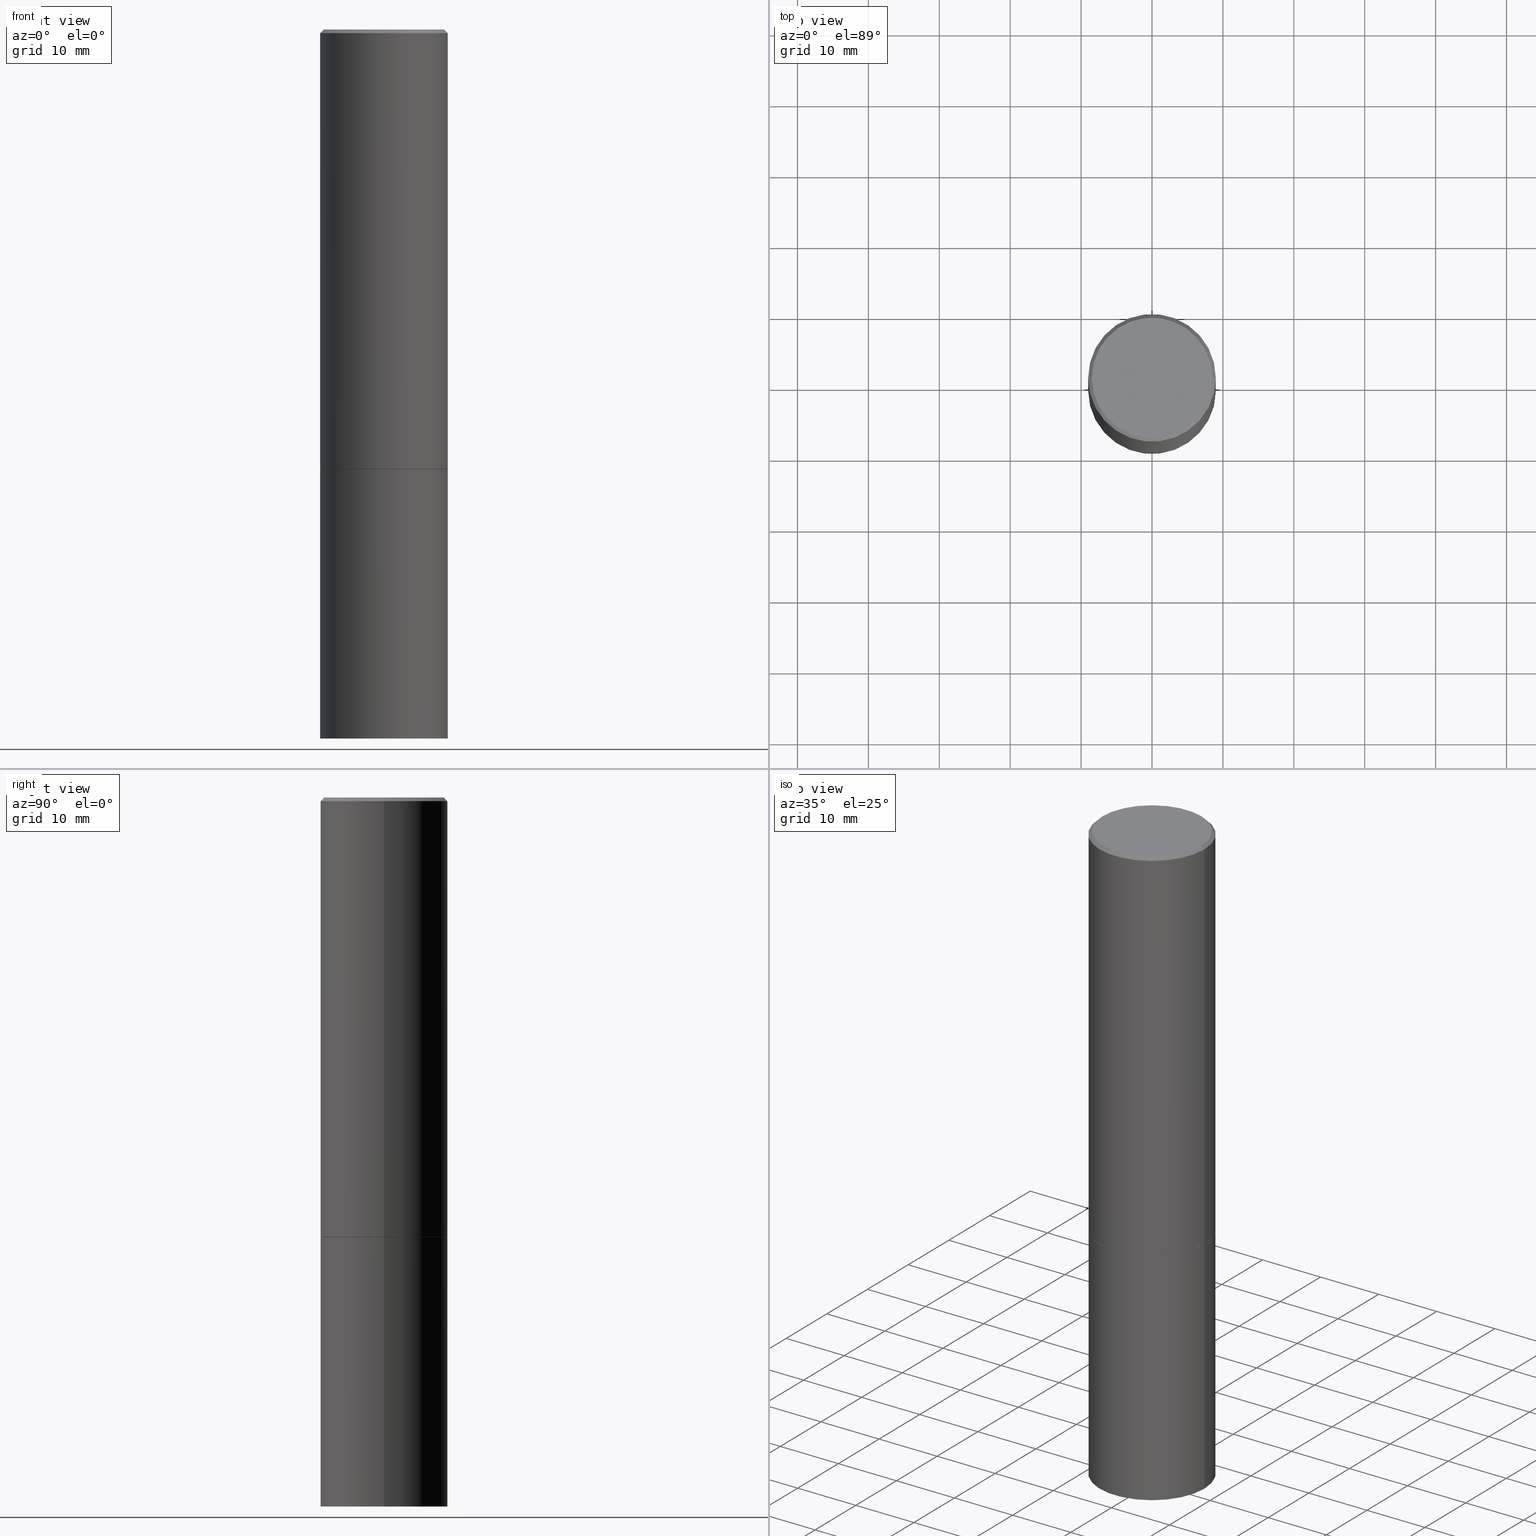
[diagram: canonical four-view strip — front | top / right | iso, engineering-drawing reading convention]
A machine part, canonical four-view strip (front | top / right | iso — engineering-drawing reading convention). The complete STEP part file that produces these views, byte-faithful:
ISO-10303-21;
HEADER;
FILE_DESCRIPTION (( 'STEP AP203' ),
    '1' );
FILE_NAME ('40577.STEP',
    '2024-02-28T02:25:38',
    ( '' ),
    ( '' ),
    'SwSTEP 2.0',
    'SolidWorks 2023',
    '' );
FILE_SCHEMA (( 'CONFIG_CONTROL_DESIGN' ));
ENDSEC;

DATA;
#1 = ORIENTED_EDGE ( 'NONE', *, *, #295, .F. ) ;
#2 = FACE_OUTER_BOUND ( 'NONE', #222, .T. ) ;
#3 = CYLINDRICAL_SURFACE ( 'NONE', #102, 0.3543499999999999983 ) ;
#4 = CARTESIAN_POINT ( 'NONE',  ( 0.3543499999999999983, -2.474412824838128694E-15, 1.727873240503289749E-29 ) ) ;
#5 = EDGE_CURVE ( 'NONE', #325, #200, #67, .T. ) ;
#6 = DIRECTION ( 'NONE',  ( -2.445468806185136597E-29, 3.491481338843145583E-15, 1.000000000000000000 ) ) ;
#7 = CARTESIAN_POINT ( 'NONE',  ( 5.966699340211115678E-29, -8.518865318643391536E-15, -2.439900000000000180 ) ) ;
#8 = CARTESIAN_POINT ( 'NONE',  ( 4.890937612370294178E-31, -6.982962677686321191E-17, -0.02000000000000008715 ) ) ;
#9 = COORDINATED_UNIVERSAL_TIME_OFFSET ( 5, 0, .BEHIND. ) ;
#10 =( NAMED_UNIT ( * ) SI_UNIT ( $, .STERADIAN. ) SOLID_ANGLE_UNIT ( ) );
#11 = VECTOR ( 'NONE', #254, 39.37007874015748143 ) ;
#12 = PRODUCT_DEFINITION ( 'UNKNOWN', '', #301, #125 ) ;
#13 = AXIS2_PLACEMENT_3D ( 'NONE', #138, #135, #229 ) ;
#14 = ADVANCED_FACE ( 'NONE', ( #144 ), #237, .F. ) ;
#15 = EDGE_LOOP ( 'NONE', ( #302, #251, #103, #76 ) ) ;
#16 = ADVANCED_BREP_SHAPE_REPRESENTATION ( '40577', ( #23, #150, #224 ), #281 ) ;
#17 = DIRECTION ( 'NONE',  ( -0.7071067811865469066, 2.468850131082251144E-15, -0.7071067811865479058 ) ) ;
#18 = ORIENTED_EDGE ( 'NONE', *, *, #352, .T. ) ;
#19 = PERSON_AND_ORGANIZATION ( #274, #270 ) ;
#20 = EDGE_CURVE ( 'NONE', #24, #261, #68, .T. ) ;
#21 = CARTESIAN_POINT ( 'NONE',  ( 4.890937612370294178E-31, -6.982962677686321191E-17, -0.02000000000000008715 ) ) ;
#22 = SECURITY_CLASSIFICATION ( '', '', #298 ) ;
#23 = MANIFOLD_SOLID_BREP ( 'Body-Move/Copy2[1]', #84 ) ;
#24 = VERTEX_POINT ( 'NONE', #142 ) ;
#25 = DIRECTION ( 'NONE',  ( -2.445468806185136597E-29, 3.491481338843145583E-15, 1.000000000000000000 ) ) ;
#26 = DIRECTION ( 'NONE',  ( 1.000000000000000000, -6.982962677686266711E-15, 4.876061227832602160E-29 ) ) ;
#27 = DIRECTION ( 'NONE',  ( 1.000000000000000000, -6.982962677686266711E-15, 4.876176775795935793E-29 ) ) ;
#28 = CARTESIAN_POINT ( 'NONE',  ( 0.3543499999999997208, -2.500847092287203718E-15, -0.02000000000000008715 ) ) ;
#29 = VECTOR ( 'NONE', #88, 39.37007874015748143 ) ;
#30 = CONICAL_SURFACE ( 'NONE', #287, 0.3533499999999999974, 0.7853981633975507526 ) ;
#31 = ORIENTED_EDGE ( 'NONE', *, *, #86, .F. ) ;
#32 = CYLINDRICAL_SURFACE ( 'NONE', #13, 0.3543499999999998873 ) ;
#33 = DIRECTION ( 'NONE',  ( -2.445468806185136597E-29, 3.491481338843145583E-15, 1.000000000000000000 ) ) ;
#34 = EDGE_CURVE ( 'NONE', #186, #285, #257, .T. ) ;
#35 = AXIS2_PLACEMENT_3D ( 'NONE', #94, #73, #153 ) ;
#36 = APPLICATION_PROTOCOL_DEFINITION ( 'international standard', 'config_control_design', 1994, #307 ) ;
#37 = CARTESIAN_POINT ( 'NONE',  ( 5.969144809017300159E-29, -8.522356799982234543E-15, -2.440900000000000070 ) ) ;
#38 = DATE_TIME_ROLE ( 'creation_date' ) ;
#39 = PRODUCT_DEFINITION_SHAPE ( 'NONE', 'NONE',  #12 ) ;
#40 = VECTOR ( 'NONE', #118, 39.37007874015748854 ) ;
#41 = LOCAL_TIME ( 21, 25, 38.00000000000000000, #324 ) ;
#42 = CALENDAR_DATE ( 2024, 27, 2 ) ;
#43 = LENGTH_MEASURE_WITH_UNIT ( LENGTH_MEASURE( 0.02539999999999999897 ), #312 );
#44 = EDGE_CURVE ( 'NONE', #299, #261, #253, .T. ) ;
#45 = ORIENTED_EDGE ( 'NONE', *, *, #44, .F. ) ;
#46 = CC_DESIGN_PERSON_AND_ORGANIZATION_ASSIGNMENT ( #209, #213, ( #98 ) ) ;
#47 = SHAPE_DEFINITION_REPRESENTATION ( #39, #16 ) ;
#48 = EDGE_LOOP ( 'NONE', ( #151, #57 ) ) ;
#49 = AXIS2_PLACEMENT_3D ( 'NONE', #92, #112, #196 ) ;
#50 = CARTESIAN_POINT ( 'NONE',  ( 4.890937612370294178E-31, -6.982962677686321191E-17, -0.02000000000000008715 ) ) ;
#51 = ADVANCED_FACE ( 'NONE', ( #314 ), #335, .F. ) ;
#52 = CARTESIAN_POINT ( 'NONE',  ( -0.3533499999999999974, -6.011654043173919372E-15, -2.440900000000000070 ) ) ;
#53 = ORIENTED_EDGE ( 'NONE', *, *, #86, .T. ) ;
#54 = CALENDAR_DATE ( 2024, 27, 2 ) ;
#55 = DIRECTION ( 'NONE',  ( 0.7071067811866199593, -2.468850131083015945E-15, 0.7071067811864750752 ) ) ;
#56 = DIRECTION ( 'NONE',  ( -2.445468806185136597E-29, 3.491481338843145583E-15, 1.000000000000000000 ) ) ;
#57 = ORIENTED_EDGE ( 'NONE', *, *, #333, .T. ) ;
#58 = CARTESIAN_POINT ( 'NONE',  ( -0.3543499999999999983, -8.616351231337934377E-15, -2.440900000000000070 ) ) ;
#59 = LOCAL_TIME ( 21, 25, 38.00000000000000000, #245 ) ;
#60 = ORIENTED_EDGE ( 'NONE', *, *, #202, .F. ) ;
#61 = DIRECTION ( 'NONE',  ( -2.445468806185136597E-29, 3.491481338843145583E-15, 1.000000000000000000 ) ) ;
#62 = ORIENTED_EDGE ( 'NONE', *, *, #293, .F. ) ;
#63 = CARTESIAN_POINT ( 'NONE',  ( -0.3543499999999999983, -1.776539288544209660E-15, -2.439900000000000180 ) ) ;
#64 = AXIS2_PLACEMENT_3D ( 'NONE', #7, #289, #234 ) ;
#65 = ORIENTED_EDGE ( 'NONE', *, *, #161, .T. ) ;
#66 = ADVANCED_FACE ( 'NONE', ( #173 ), #91, .T. ) ;
#67 = LINE ( 'NONE', #230, #292 ) ;
#68 = CIRCLE ( 'NONE', #273, 0.3543499999999999983 ) ;
#69 = FACE_OUTER_BOUND ( 'NONE', #189, .T. ) ;
#70 = CONICAL_SURFACE ( 'NONE', #204, 0.3543499999999997208, 0.7853981633974476129 ) ;
#71 = DATE_AND_TIME ( #211, #59 ) ;
#72 = APPROVAL ( #126, 'UNSPECIFIED' ) ;
#73 = DIRECTION ( 'NONE',  ( -2.438088387897960049E-29, 3.491481338843145188E-15, 1.000000000000000000 ) ) ;
#74 = VECTOR ( 'NONE', #123, 39.37007874015748143 ) ;
#75 = CC_DESIGN_APPROVAL ( #72, ( #301 ) ) ;
#76 = ORIENTED_EDGE ( 'NONE', *, *, #5, .F. ) ;
#77 = CARTESIAN_POINT ( 'NONE',  ( -0.3543499999999999983, -8.616351231337934377E-15, -3.937000000000000277 ) ) ;
#78 = ORIENTED_EDGE ( 'NONE', *, *, #333, .F. ) ;
#79 = DIRECTION ( 'NONE',  ( 1.000000000000000000, -6.982962677686265133E-15, 0.000000000000000000 ) ) ;
#80 = EDGE_LOOP ( 'NONE', ( #297, #119, #360, #83 ) ) ;
#81 = APPROVAL_STATUS ( 'not_yet_approved' ) ;
#82 = CARTESIAN_POINT ( 'NONE',  ( 0.000000000000000000, 0.000000000000000000, 0.000000000000000000 ) ) ;
#83 = ORIENTED_EDGE ( 'NONE', *, *, #352, .F. ) ;
#84 = CLOSED_SHELL ( 'NONE', ( #348, #346, #51, #268 ) ) ;
#85 = CIRCLE ( 'NONE', #182, 0.3543499999999999983 ) ;
#86 = EDGE_CURVE ( 'NONE', #331, #258, #336, .T. ) ;
#87 = DIRECTION ( 'NONE',  ( -2.445468806185136877E-29, 3.491481338843145188E-15, 1.000000000000000000 ) ) ;
#88 = DIRECTION ( 'NONE',  ( -2.445468806185136877E-29, 3.491481338843145188E-15, 1.000000000000000000 ) ) ;
#89 = DIRECTION ( 'NONE',  ( 1.000000000000000000, -6.982962677686265133E-15, 0.000000000000000000 ) ) ;
#90 = EDGE_CURVE ( 'NONE', #331, #200, #232, .T. ) ;
#91 = CONICAL_SURFACE ( 'NONE', #350, 0.3543499999999997208, 0.7853981633974476129 ) ;
#92 = CARTESIAN_POINT ( 'NONE',  ( 2.334753571284400520E-15, 0.3343499999999996475, -1.165242529397154385E-15 ) ) ;
#93 = CARTESIAN_POINT ( 'NONE',  ( -0.3543499999999997208, 2.404583198061263424E-15, -0.02000000000000008715 ) ) ;
#94 = CARTESIAN_POINT ( 'NONE',  ( 5.969144809017300159E-29, -8.522356799982234543E-15, -2.440900000000000070 ) ) ;
#95 = CIRCLE ( 'NONE', #317, 0.3343499999999996475 ) ;
#96 = EDGE_CURVE ( 'NONE', #111, #146, #236, .T. ) ;
#97 = CC_DESIGN_APPROVAL ( #256, ( #12 ) ) ;
#98 = PRODUCT ( '40577', '40577', '', ( #159 ) ) ;
#99 = DIRECTION ( 'NONE',  ( -2.445468806185136597E-29, 3.491481338843145583E-15, 1.000000000000000000 ) ) ;
#100 = APPROVAL_ROLE ( '' ) ;
#101 = ORIENTED_EDGE ( 'NONE', *, *, #288, .T. ) ;
#102 = AXIS2_PLACEMENT_3D ( 'NONE', #122, #291, #154 ) ;
#103 = ORIENTED_EDGE ( 'NONE', *, *, #288, .F. ) ;
#104 = APPROVAL_ROLE ( '' ) ;
#105 = CARTESIAN_POINT ( 'NONE',  ( 0.3533499999999999974, -1.098978666214267525E-14, -2.440900000000000070 ) ) ;
#106 = EDGE_LOOP ( 'NONE', ( #227, #305, #358, #60 ) ) ;
#107 = DIRECTION ( 'NONE',  ( -2.445468806185136597E-29, 3.491481338843145583E-15, 1.000000000000000000 ) ) ;
#108 = VECTOR ( 'NONE', #361, 39.37007874015748143 ) ;
#109 = APPROVAL ( #81, 'UNSPECIFIED' ) ;
#110 = LINE ( 'NONE', #193, #241 ) ;
#111 = VERTEX_POINT ( 'NONE', #63 ) ;
#112 = DIRECTION ( 'NONE',  ( 2.438088387897960049E-29, -3.491481338843145188E-15, -1.000000000000000000 ) ) ;
#113 = CARTESIAN_POINT ( 'NONE',  ( 0.000000000000000000, 0.000000000000000000, 0.000000000000000000 ) ) ;
#114 = CC_DESIGN_PERSON_AND_ORGANIZATION_ASSIGNMENT ( #192, #303, ( #22 ) ) ;
#115 = DIRECTION ( 'NONE',  ( 2.445468806185136597E-29, -3.491481338843145583E-15, -1.000000000000000000 ) ) ;
#116 = AXIS2_PLACEMENT_3D ( 'NONE', #313, #283, #26 ) ;
#117 = CIRCLE ( 'NONE', #128, 0.3533499999999999974 ) ;
#118 = DIRECTION ( 'NONE',  ( 0.7071067811865469066, -7.319954787623252890E-15, -0.7071067811865479058 ) ) ;
#119 = ORIENTED_EDGE ( 'NONE', *, *, #34, .T. ) ;
#120 = ORIENTED_EDGE ( 'NONE', *, *, #272, .F. ) ;
#121 = CIRCLE ( 'NONE', #343, 0.3543499999999997208 ) ;
#122 = CARTESIAN_POINT ( 'NONE',  ( 0.000000000000000000, 0.000000000000000000, 0.000000000000000000 ) ) ;
#123 = DIRECTION ( 'NONE',  ( -2.445468806185136877E-29, 3.491481338843145188E-15, 1.000000000000000000 ) ) ;
#124 = CARTESIAN_POINT ( 'NONE',  ( 0.000000000000000000, 0.000000000000000000, 0.000000000000000000 ) ) ;
#125 = DESIGN_CONTEXT ( 'detailed design', #307, 'design' ) ;
#126 = APPROVAL_STATUS ( 'not_yet_approved' ) ;
#127 = PLANE ( 'NONE',  #259 ) ;
#128 = AXIS2_PLACEMENT_3D ( 'NONE', #141, #362, #231 ) ;
#129 = PERSON_AND_ORGANIZATION ( #274, #270 ) ;
#130 = ADVANCED_FACE ( 'NONE', ( #175 ), #185, .T. ) ;
#131 = ORIENTED_EDGE ( 'NONE', *, *, #34, .F. ) ;
#132 = LOCAL_TIME ( 21, 25, 38.00000000000000000, #351 ) ;
#133 = CALENDAR_DATE ( 2024, 27, 2 ) ;
#134 = VERTEX_POINT ( 'NONE', #198 ) ;
#135 = DIRECTION ( 'NONE',  ( -2.445468806185136597E-29, 3.491481338843145583E-15, 1.000000000000000000 ) ) ;
#136 = CC_DESIGN_DATE_AND_TIME_ASSIGNMENT ( #71, #38, ( #12 ) ) ;
#137 = DATE_AND_TIME ( #133, #41 ) ;
#138 = CARTESIAN_POINT ( 'NONE',  ( 0.000000000000000000, 0.000000000000000000, 0.000000000000000000 ) ) ;
#139 = ORIENTED_EDGE ( 'NONE', *, *, #90, .F. ) ;
#140 = CIRCLE ( 'NONE', #320, 0.3543499999999999983 ) ;
#141 = CARTESIAN_POINT ( 'NONE',  ( 5.969144809017299038E-29, -8.522356799982232966E-15, -2.440900000000000070 ) ) ;
#142 = CARTESIAN_POINT ( 'NONE',  ( 0.3543499999999999983, -1.099676962482036284E-14, -2.440900000000000070 ) ) ;
#143 = APPROVAL_DATE_TIME ( #187, #109 ) ;
#144 = FACE_OUTER_BOUND ( 'NONE', #323, .T. ) ;
#145 = DIRECTION ( 'NONE',  ( 1.000000000000000000, -6.982962677686265922E-15, 0.000000000000000000 ) ) ;
#146 = VERTEX_POINT ( 'NONE', #93 ) ;
#147 = AXIS2_PLACEMENT_3D ( 'NONE', #308, #174, #363 ) ;
#148 = CC_DESIGN_APPROVAL ( #109, ( #22 ) ) ;
#149 = ORIENTED_EDGE ( 'NONE', *, *, #158, .F. ) ;
#150 = MANIFOLD_SOLID_BREP ( 'Body-Move/Copy2[2]', #216 ) ;
#151 = ORIENTED_EDGE ( 'NONE', *, *, #20, .T. ) ;
#152 = DIRECTION ( 'NONE',  ( 1.000000000000000000, -6.982962677686265922E-15, 0.000000000000000000 ) ) ;
#153 = DIRECTION ( 'NONE',  ( 1.000000000000000000, -6.982962677686265922E-15, 4.876176775795935793E-29 ) ) ;
#154 = DIRECTION ( 'NONE',  ( 1.000000000000000000, -6.982962677686266711E-15, 4.876176775795935793E-29 ) ) ;
#155 = DIMENSIONAL_EXPONENTS ( 1.000000000000000000, 0.000000000000000000, 0.000000000000000000, 0.000000000000000000, 0.000000000000000000, 0.000000000000000000, 0.000000000000000000 ) ;
#156 = EDGE_CURVE ( 'NONE', #325, #111, #140, .T. ) ;
#157 = DATE_AND_TIME ( #42, #190 ) ;
#158 = EDGE_CURVE ( 'NONE', #146, #200, #121, .T. ) ;
#159 = MECHANICAL_CONTEXT ( 'NONE', #290, 'mechanical' ) ;
#160 = CARTESIAN_POINT ( 'NONE',  ( 2.474412824838224146E-15, 0.3543499999999862871, -3.937000000000001165 ) ) ;
#161 = EDGE_CURVE ( 'NONE', #258, #331, #95, .T. ) ;
#162 = APPROVAL_DATE_TIME ( #157, #256 ) ;
#163 =( NAMED_UNIT ( * ) PLANE_ANGLE_UNIT ( ) SI_UNIT ( $, .RADIAN. ) );
#164 = CIRCLE ( 'NONE', #329, 0.3543499999999999983 ) ;
#165 = ORIENTED_EDGE ( 'NONE', *, *, #96, .F. ) ;
#166 = ADVANCED_FACE ( 'NONE', ( #69 ), #266, .F. ) ;
#167 = LINE ( 'NONE', #52, #11 ) ;
#168 = ORIENTED_EDGE ( 'NONE', *, *, #20, .F. ) ;
#169 = PERSON_AND_ORGANIZATION_ROLE ( 'creator' ) ;
#170 = DIRECTION ( 'NONE',  ( 1.000000000000000000, -6.982962677686265922E-15, 0.000000000000000000 ) ) ;
#171 = EDGE_CURVE ( 'NONE', #134, #24, #263, .T. ) ;
#172 = DIRECTION ( 'NONE',  ( -2.445468806185136597E-29, 3.491481338843145583E-15, 1.000000000000000000 ) ) ;
#173 = FACE_OUTER_BOUND ( 'NONE', #342, .T. ) ;
#174 = DIRECTION ( 'NONE',  ( 2.438088387897960049E-29, -3.491481338843145188E-15, -1.000000000000000000 ) ) ;
#175 = FACE_OUTER_BOUND ( 'NONE', #80, .T. ) ;
#176 = CIRCLE ( 'NONE', #365, 0.3543499999999999983 ) ;
#177 = CC_DESIGN_DATE_AND_TIME_ASSIGNMENT ( #137, #277, ( #22 ) ) ;
#178 = DIRECTION ( 'NONE',  ( -1.000000000000000000, 6.982962677686266711E-15, 0.000000000000000000 ) ) ;
#179 = ORIENTED_EDGE ( 'NONE', *, *, #90, .T. ) ;
#180 = FACE_OUTER_BOUND ( 'NONE', #249, .T. ) ;
#181 = CC_DESIGN_PERSON_AND_ORGANIZATION_ASSIGNMENT ( #19, #332, ( #301 ) ) ;
#182 = AXIS2_PLACEMENT_3D ( 'NONE', #199, #25, #170 ) ;
#183 = APPLICATION_PROTOCOL_DEFINITION ( 'international standard', 'config_control_design', 1994, #290 ) ;
#184 = DIRECTION ( 'NONE',  ( -2.445468806185136597E-29, 3.491481338843145583E-15, 1.000000000000000000 ) ) ;
#185 = CONICAL_SURFACE ( 'NONE', #239, 0.3533499999999999974, 0.7853981633975507526 ) ;
#186 = VERTEX_POINT ( 'NONE', #208 ) ;
#187 = DATE_AND_TIME ( #54, #233 ) ;
#188 = CARTESIAN_POINT ( 'NONE',  ( 0.3543499999999999983, -1.099327814348151984E-14, -2.439900000000000180 ) ) ;
#189 = EDGE_LOOP ( 'NONE', ( #62, #131 ) ) ;
#190 = LOCAL_TIME ( 21, 25, 38.00000000000000000, #9 ) ;
#191 = CYLINDRICAL_SURFACE ( 'NONE', #321, 0.3543499999999998873 ) ;
#192 = PERSON_AND_ORGANIZATION ( #274, #270 ) ;
#193 = CARTESIAN_POINT ( 'NONE',  ( -0.3543499999999997208, 2.404583198061263424E-15, -0.02000000000000008715 ) ) ;
#194 = EDGE_LOOP ( 'NONE', ( #45, #201, #238, #78 ) ) ;
#195 = FACE_OUTER_BOUND ( 'NONE', #15, .T. ) ;
#196 = DIRECTION ( 'NONE',  ( -1.000000000000000000, 6.982962677686265922E-15, -4.876176775795935793E-29 ) ) ;
#197 = CARTESIAN_POINT ( 'NONE',  ( 5.966699340211115678E-29, -8.518865318643391536E-15, -2.439900000000000180 ) ) ;
#198 = CARTESIAN_POINT ( 'NONE',  ( 0.3543499999999999983, -1.622037485586359329E-14, -3.937000000000000277 ) ) ;
#199 = CARTESIAN_POINT ( 'NONE',  ( 9.627810689950883669E-29, -1.374596203102546341E-14, -3.937000000000000277 ) ) ;
#200 = VERTEX_POINT ( 'NONE', #228 ) ;
#201 = ORIENTED_EDGE ( 'NONE', *, *, #295, .T. ) ;
#202 = EDGE_CURVE ( 'NONE', #285, #325, #296, .T. ) ;
#203 = CARTESIAN_POINT ( 'NONE',  ( -0.3543499999999999983, 2.517808184165914997E-15, -1.743024649231826066E-29 ) ) ;
#204 = AXIS2_PLACEMENT_3D ( 'NONE', #50, #278, #328 ) ;
#205 = APPROVAL_PERSON_ORGANIZATION ( #250, #109, #104 ) ;
#206 = CARTESIAN_POINT ( 'NONE',  ( 5.969144809017300159E-29, -8.522356799982234543E-15, -2.440900000000000070 ) ) ;
#207 = ADVANCED_FACE ( 'NONE', ( #356 ), #32, .T. ) ;
#208 = CARTESIAN_POINT ( 'NONE',  ( -0.3533499999999999974, -6.006355588825696969E-15, -2.440900000000000070 ) ) ;
#209 = PERSON_AND_ORGANIZATION ( #274, #270 ) ;
#210 = DIRECTION ( 'NONE',  ( 1.000000000000000000, -6.982962677686266711E-15, 4.876061227832602160E-29 ) ) ;
#211 = CALENDAR_DATE ( 2024, 27, 2 ) ;
#212 = APPROVAL_PERSON_ORGANIZATION ( #129, #72, #100 ) ;
#213 = PERSON_AND_ORGANIZATION_ROLE ( 'design_owner' ) ;
#214 = DIRECTION ( 'NONE',  ( 0.000000000000000000, 0.000000000000000000, 1.000000000000000000 ) ) ;
#215 = DIRECTION ( 'NONE',  ( 1.000000000000000000, -6.982962677686266711E-15, 0.000000000000000000 ) ) ;
#216 = CLOSED_SHELL ( 'NONE', ( #248, #235, #219, #66, #207, #130, #166, #14 ) ) ;
#217 = VECTOR ( 'NONE', #55, 39.37007874015748143 ) ;
#218 = PERSON_AND_ORGANIZATION ( #274, #270 ) ;
#219 = ADVANCED_FACE ( 'NONE', ( #359 ), #70, .T. ) ;
#220 = ORIENTED_EDGE ( 'NONE', *, *, #240, .F. ) ;
#221 = FACE_OUTER_BOUND ( 'NONE', #194, .T. ) ;
#222 = EDGE_LOOP ( 'NONE', ( #120, #1 ) ) ;
#223 = APPROVAL_DATE_TIME ( #225, #72 ) ;
#224 = AXIS2_PLACEMENT_3D ( 'NONE', #124, #214, #271 ) ;
#225 = DATE_AND_TIME ( #318, #132 ) ;
#226 = DIRECTION ( 'NONE',  ( -2.445468806185136597E-29, 3.491481338843145583E-15, 1.000000000000000000 ) ) ;
#227 = ORIENTED_EDGE ( 'NONE', *, *, #293, .T. ) ;
#228 = CARTESIAN_POINT ( 'NONE',  ( 0.3543499999999997208, -2.500847092287203718E-15, -0.02000000000000008715 ) ) ;
#229 = DIRECTION ( 'NONE',  ( 1.000000000000000000, -6.982962677686266711E-15, 4.876176775795935232E-29 ) ) ;
#230 = CARTESIAN_POINT ( 'NONE',  ( 0.3543499999999998873, -2.474412824838127905E-15, 1.727873240503289188E-29 ) ) ;
#231 = DIRECTION ( 'NONE',  ( 1.000000000000000000, -6.982962677686265133E-15, 0.000000000000000000 ) ) ;
#232 = LINE ( 'NONE', #28, #40 ) ;
#233 = LOCAL_TIME ( 21, 25, 38.00000000000000000, #326 ) ;
#234 = DIRECTION ( 'NONE',  ( 1.000000000000000000, -6.982962677686268288E-15, 0.000000000000000000 ) ) ;
#235 = ADVANCED_FACE ( 'NONE', ( #195 ), #191, .T. ) ;
#236 = LINE ( 'NONE', #339, #29 ) ;
#237 = PLANE ( 'NONE',  #49 ) ;
#238 = ORIENTED_EDGE ( 'NONE', *, *, #171, .T. ) ;
#239 = AXIS2_PLACEMENT_3D ( 'NONE', #286, #6, #264 ) ;
#240 = EDGE_CURVE ( 'NONE', #258, #146, #110, .T. ) ;
#241 = VECTOR ( 'NONE', #17, 39.37007874015748854 ) ;
#242 = DIRECTION ( 'NONE',  ( -1.000000000000000000, 6.982962677686265922E-15, -4.876176775795935793E-29 ) ) ;
#243 = DIRECTION ( 'NONE',  ( -2.445468806185136597E-29, 3.491481338843145583E-15, 1.000000000000000000 ) ) ;
#244 = CIRCLE ( 'NONE', #275, 0.3543499999999997208 ) ;
#245 = COORDINATED_UNIVERSAL_TIME_OFFSET ( 5, 0, .BEHIND. ) ;
#246 = ORIENTED_EDGE ( 'NONE', *, *, #171, .F. ) ;
#247 = APPROVAL_ROLE ( '' ) ;
#248 = ADVANCED_FACE ( 'NONE', ( #364 ), #30, .T. ) ;
#249 = EDGE_LOOP ( 'NONE', ( #252, #279, #168, #246 ) ) ;
#250 = PERSON_AND_ORGANIZATION ( #274, #270 ) ;
#251 = ORIENTED_EDGE ( 'NONE', *, *, #96, .T. ) ;
#252 = ORIENTED_EDGE ( 'NONE', *, *, #272, .T. ) ;
#253 = LINE ( 'NONE', #203, #108 ) ;
#254 = DIRECTION ( 'NONE',  ( -0.7071067811866199593, 7.493145998870616062E-15, 0.7071067811864750752 ) ) ;
#255 = CARTESIAN_POINT ( 'NONE',  ( 5.969144809017299038E-29, -8.522356799982232966E-15, -2.440900000000000070 ) ) ;
#256 = APPROVAL ( #267, 'UNSPECIFIED' ) ;
#257 = CIRCLE ( 'NONE', #341, 0.3533499999999999974 ) ;
#258 = VERTEX_POINT ( 'NONE', #306 ) ;
#259 = AXIS2_PLACEMENT_3D ( 'NONE', #160, #347, #242 ) ;
#260 = APPROVAL_PERSON_ORGANIZATION ( #269, #256, #247 ) ;
#261 = VERTEX_POINT ( 'NONE', #58 ) ;
#262 = EDGE_LOOP ( 'NONE', ( #31, #179, #101, #220 ) ) ;
#263 = LINE ( 'NONE', #4, #74 ) ;
#264 = DIRECTION ( 'NONE',  ( 1.000000000000000000, -6.982962677686265133E-15, 0.000000000000000000 ) ) ;
#265 = PERSON_AND_ORGANIZATION ( #274, #270 ) ;
#266 = PLANE ( 'NONE',  #35 ) ;
#267 = APPROVAL_STATUS ( 'not_yet_approved' ) ;
#268 = ADVANCED_FACE ( 'NONE', ( #221 ), #304, .T. ) ;
#269 = PERSON_AND_ORGANIZATION ( #274, #270 ) ;
#270 = ORGANIZATION ( 'UNSPECIFIED', 'UNSPECIFIED', '' ) ;
#271 = DIRECTION ( 'NONE',  ( 1.000000000000000000, 0.000000000000000000, 0.000000000000000000 ) ) ;
#272 = EDGE_CURVE ( 'NONE', #134, #299, #85, .T. ) ;
#273 = AXIS2_PLACEMENT_3D ( 'NONE', #206, #311, #316 ) ;
#274 = PERSON ( 'UNSPECIFIED', 'UNSPECIFIED', 'UNSPECIFIED', ('UNSPECIFIED'), ('UNSPECIFIED'), ('UNSPECIFIED') ) ;
#275 = AXIS2_PLACEMENT_3D ( 'NONE', #21, #172, #282 ) ;
#276 = ORIENTED_EDGE ( 'NONE', *, *, #5, .T. ) ;
#277 = DATE_TIME_ROLE ( 'classification_date' ) ;
#278 = DIRECTION ( 'NONE',  ( 2.445468806185136597E-29, -3.491481338843145583E-15, -1.000000000000000000 ) ) ;
#279 = ORIENTED_EDGE ( 'NONE', *, *, #44, .T. ) ;
#280 = CARTESIAN_POINT ( 'NONE',  ( 0.3533499999999999974, -1.098978666214267525E-14, -2.440900000000000070 ) ) ;
#281 =( GEOMETRIC_REPRESENTATION_CONTEXT ( 3 ) GLOBAL_UNCERTAINTY_ASSIGNED_CONTEXT ( ( #345 ) ) GLOBAL_UNIT_ASSIGNED_CONTEXT ( ( #322, #163, #10 ) ) REPRESENTATION_CONTEXT ( 'NONE', 'WORKASPACE' ) );
#282 = DIRECTION ( 'NONE',  ( 1.000000000000000000, -6.982962677686266711E-15, 0.000000000000000000 ) ) ;
#283 = DIRECTION ( 'NONE',  ( -2.445468806185136597E-29, 3.491481338843145583E-15, 1.000000000000000000 ) ) ;
#284 = EDGE_CURVE ( 'NONE', #186, #111, #167, .T. ) ;
#285 = VERTEX_POINT ( 'NONE', #280 ) ;
#286 = CARTESIAN_POINT ( 'NONE',  ( 5.969144809017299038E-29, -8.522356799982232966E-15, -2.440900000000000070 ) ) ;
#287 = AXIS2_PLACEMENT_3D ( 'NONE', #334, #226, #79 ) ;
#288 = EDGE_CURVE ( 'NONE', #200, #146, #244, .T. ) ;
#289 = DIRECTION ( 'NONE',  ( -2.445468806185136597E-29, 3.491481338843145583E-15, 1.000000000000000000 ) ) ;
#290 = APPLICATION_CONTEXT ( 'configuration controlled 3d designs of mechanical parts and assemblies' ) ;
#291 = DIRECTION ( 'NONE',  ( -2.445468806185136597E-29, 3.491481338843145583E-15, 1.000000000000000000 ) ) ;
#292 = VECTOR ( 'NONE', #87, 39.37007874015748143 ) ;
#293 = EDGE_CURVE ( 'NONE', #285, #186, #117, .T. ) ;
#294 = DIRECTION ( 'NONE',  ( 1.000000000000000000, -6.982962677686268288E-15, 0.000000000000000000 ) ) ;
#295 = EDGE_CURVE ( 'NONE', #299, #134, #164, .T. ) ;
#296 = LINE ( 'NONE', #105, #217 ) ;
#297 = ORIENTED_EDGE ( 'NONE', *, *, #284, .F. ) ;
#298 = SECURITY_CLASSIFICATION_LEVEL ( 'unclassified' ) ;
#299 = VERTEX_POINT ( 'NONE', #77 ) ;
#300 = CARTESIAN_POINT ( 'NONE',  ( 0.3343499999999996475, -2.397327298921056737E-15, 4.268512490116958099E-18 ) ) ;
#301 = PRODUCT_DEFINITION_FORMATION_WITH_SPECIFIED_SOURCE ( 'ANY', '', #98, .NOT_KNOWN. ) ;
#302 = ORIENTED_EDGE ( 'NONE', *, *, #156, .T. ) ;
#303 = PERSON_AND_ORGANIZATION_ROLE ( 'classification_officer' ) ;
#304 = CYLINDRICAL_SURFACE ( 'NONE', #337, 0.3543499999999999983 ) ;
#305 = ORIENTED_EDGE ( 'NONE', *, *, #284, .T. ) ;
#306 = CARTESIAN_POINT ( 'NONE',  ( -0.3343499999999996475, 2.369668384672832169E-15, 4.268512490083961526E-18 ) ) ;
#307 = APPLICATION_CONTEXT ( 'configuration controlled 3d designs of mechanical parts and assemblies' ) ;
#308 = CARTESIAN_POINT ( 'NONE',  ( 2.474412824838187859E-15, 0.3543499999999914496, -2.440900000000001402 ) ) ;
#309 = CC_DESIGN_PERSON_AND_ORGANIZATION_ASSIGNMENT ( #218, #169, ( #301 ) ) ;
#310 = CARTESIAN_POINT ( 'NONE',  ( 9.627810689950883669E-29, -1.374596203102546341E-14, -3.937000000000000277 ) ) ;
#311 = DIRECTION ( 'NONE',  ( -2.445468806185136597E-29, 3.491481338843145583E-15, 1.000000000000000000 ) ) ;
#312 =( LENGTH_UNIT ( ) NAMED_UNIT ( * ) SI_UNIT ( $, .METRE. ) );
#313 = CARTESIAN_POINT ( 'NONE',  ( -1.043851414335219820E-46, 1.490343170380447200E-32, 4.268512490100411279E-18 ) ) ;
#314 = FACE_OUTER_BOUND ( 'NONE', #48, .T. ) ;
#315 = PRODUCT_RELATED_PRODUCT_CATEGORY ( 'detail', '', ( #98 ) ) ;
#316 = DIRECTION ( 'NONE',  ( 1.000000000000000000, -6.982962677686265922E-15, 0.000000000000000000 ) ) ;
#317 = AXIS2_PLACEMENT_3D ( 'NONE', #319, #243, #210 ) ;
#318 = CALENDAR_DATE ( 2024, 27, 2 ) ;
#319 = CARTESIAN_POINT ( 'NONE',  ( -1.043851414335219820E-46, 1.490343170380447200E-32, 4.268512490100411279E-18 ) ) ;
#320 = AXIS2_PLACEMENT_3D ( 'NONE', #197, #184, #294 ) ;
#321 = AXIS2_PLACEMENT_3D ( 'NONE', #82, #107, #357 ) ;
#322 =( CONVERSION_BASED_UNIT ( 'INCH', #43 ) LENGTH_UNIT ( ) NAMED_UNIT ( #155 ) );
#323 = EDGE_LOOP ( 'NONE', ( #65, #53 ) ) ;
#324 = COORDINATED_UNIVERSAL_TIME_OFFSET ( 5, 0, .BEHIND. ) ;
#325 = VERTEX_POINT ( 'NONE', #188 ) ;
#326 = COORDINATED_UNIVERSAL_TIME_OFFSET ( 5, 0, .BEHIND. ) ;
#327 = ORIENTED_EDGE ( 'NONE', *, *, #240, .T. ) ;
#328 = DIRECTION ( 'NONE',  ( -1.000000000000000000, 6.982962677686266711E-15, 0.000000000000000000 ) ) ;
#329 = AXIS2_PLACEMENT_3D ( 'NONE', #310, #61, #145 ) ;
#330 = CC_DESIGN_SECURITY_CLASSIFICATION ( #22, ( #301 ) ) ;
#331 = VERTEX_POINT ( 'NONE', #300 ) ;
#332 = PERSON_AND_ORGANIZATION_ROLE ( 'design_supplier' ) ;
#333 = EDGE_CURVE ( 'NONE', #261, #24, #176, .T. ) ;
#334 = CARTESIAN_POINT ( 'NONE',  ( 5.969144809017299038E-29, -8.522356799982232966E-15, -2.440900000000000070 ) ) ;
#335 = PLANE ( 'NONE',  #147 ) ;
#336 = CIRCLE ( 'NONE', #116, 0.3343499999999996475 ) ;
#337 = AXIS2_PLACEMENT_3D ( 'NONE', #113, #56, #27 ) ;
#338 = EDGE_LOOP ( 'NONE', ( #165, #18, #276, #149 ) ) ;
#339 = CARTESIAN_POINT ( 'NONE',  ( -0.3543499999999998873, 2.517808184165914208E-15, -1.743024649231825225E-29 ) ) ;
#340 = DIRECTION ( 'NONE',  ( -2.445468806185136597E-29, 3.491481338843145583E-15, 1.000000000000000000 ) ) ;
#341 = AXIS2_PLACEMENT_3D ( 'NONE', #255, #340, #89 ) ;
#342 = EDGE_LOOP ( 'NONE', ( #139, #353, #327, #354 ) ) ;
#343 = AXIS2_PLACEMENT_3D ( 'NONE', #8, #99, #215 ) ;
#344 = CIRCLE ( 'NONE', #64, 0.3543499999999999983 ) ;
#345 = UNCERTAINTY_MEASURE_WITH_UNIT (LENGTH_MEASURE( 1.000000000000000082E-05 ), #322, 'distance_accuracy_value', 'NONE');
#346 = ADVANCED_FACE ( 'NONE', ( #2 ), #127, .T. ) ;
#347 = DIRECTION ( 'NONE',  ( 2.438088387897960049E-29, -3.491481338843145188E-15, -1.000000000000000000 ) ) ;
#348 = ADVANCED_FACE ( 'NONE', ( #180 ), #3, .T. ) ;
#349 = PERSON_AND_ORGANIZATION_ROLE ( 'creator' ) ;
#350 = AXIS2_PLACEMENT_3D ( 'NONE', #366, #115, #178 ) ;
#351 = COORDINATED_UNIVERSAL_TIME_OFFSET ( 5, 0, .BEHIND. ) ;
#352 = EDGE_CURVE ( 'NONE', #111, #325, #344, .T. ) ;
#353 = ORIENTED_EDGE ( 'NONE', *, *, #161, .F. ) ;
#354 = ORIENTED_EDGE ( 'NONE', *, *, #158, .T. ) ;
#355 = CC_DESIGN_PERSON_AND_ORGANIZATION_ASSIGNMENT ( #265, #349, ( #12 ) ) ;
#356 = FACE_OUTER_BOUND ( 'NONE', #338, .T. ) ;
#357 = DIRECTION ( 'NONE',  ( 1.000000000000000000, -6.982962677686266711E-15, 4.876176775795935232E-29 ) ) ;
#358 = ORIENTED_EDGE ( 'NONE', *, *, #156, .F. ) ;
#359 = FACE_OUTER_BOUND ( 'NONE', #262, .T. ) ;
#360 = ORIENTED_EDGE ( 'NONE', *, *, #202, .T. ) ;
#361 = DIRECTION ( 'NONE',  ( -2.445468806185136877E-29, 3.491481338843145188E-15, 1.000000000000000000 ) ) ;
#362 = DIRECTION ( 'NONE',  ( -2.445468806185136597E-29, 3.491481338843145583E-15, 1.000000000000000000 ) ) ;
#363 = DIRECTION ( 'NONE',  ( -1.000000000000000000, 6.982962677686265922E-15, -4.876176775795935793E-29 ) ) ;
#364 = FACE_OUTER_BOUND ( 'NONE', #106, .T. ) ;
#365 = AXIS2_PLACEMENT_3D ( 'NONE', #37, #33, #152 ) ;
#366 = CARTESIAN_POINT ( 'NONE',  ( 4.890937612370294178E-31, -6.982962677686321191E-17, -0.02000000000000008715 ) ) ;
ENDSEC;
END-ISO-10303-21;
